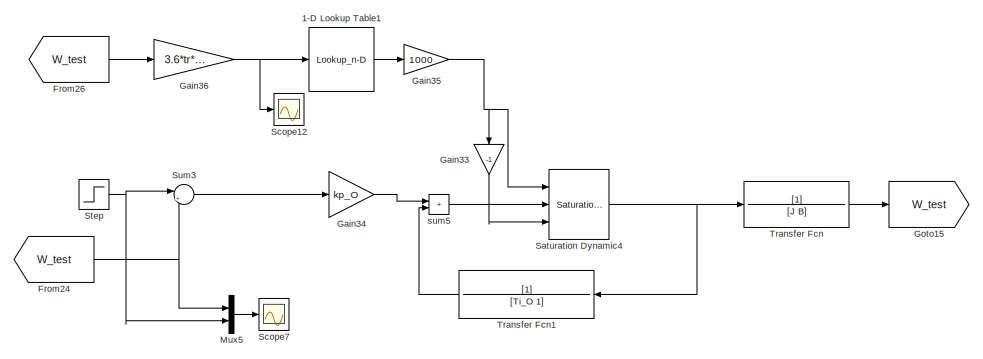
[diagram: root canvas - part 1/10, top center region]
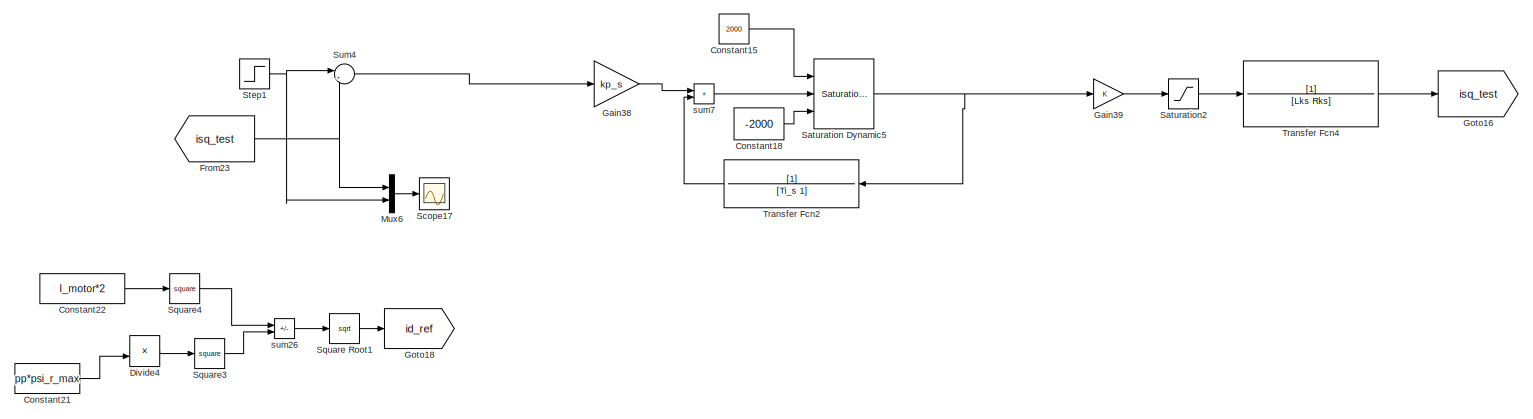
[diagram: root canvas - part 2/10, top center region]
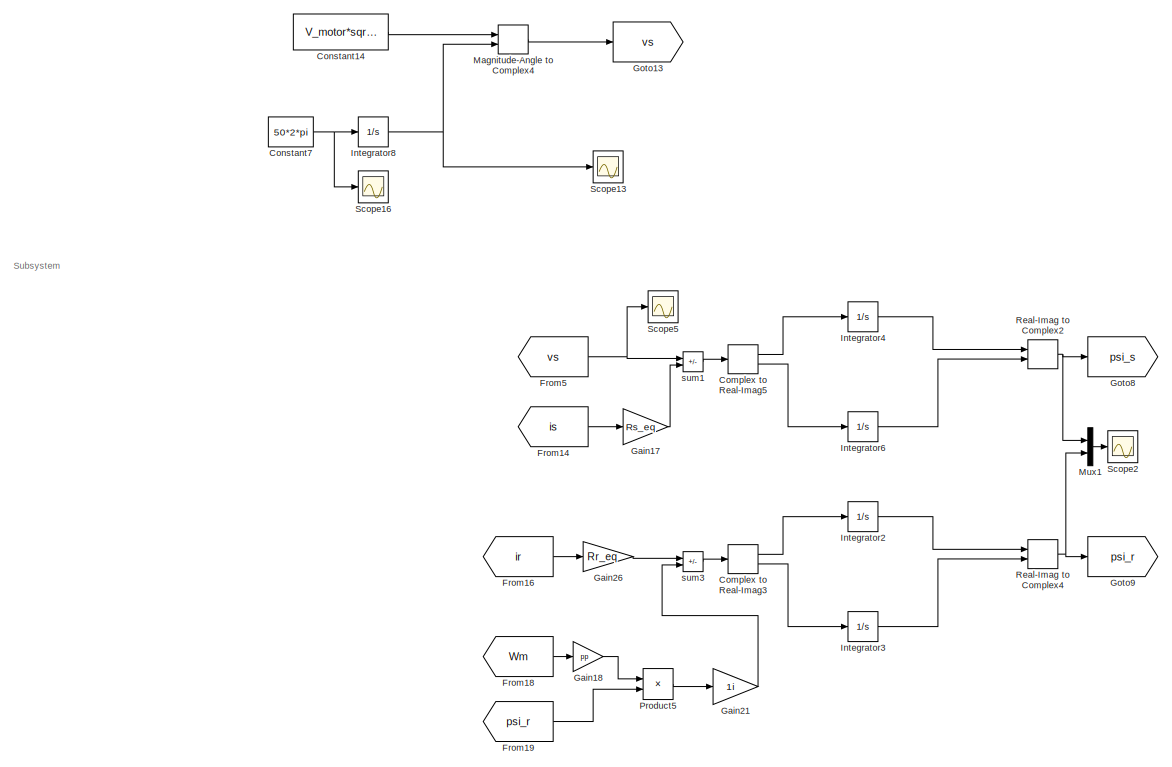
[diagram: root canvas - part 3/10, middle right region]
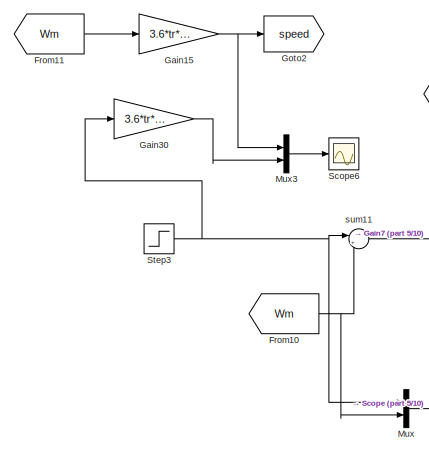
[diagram: root canvas - part 4/10, top left region]
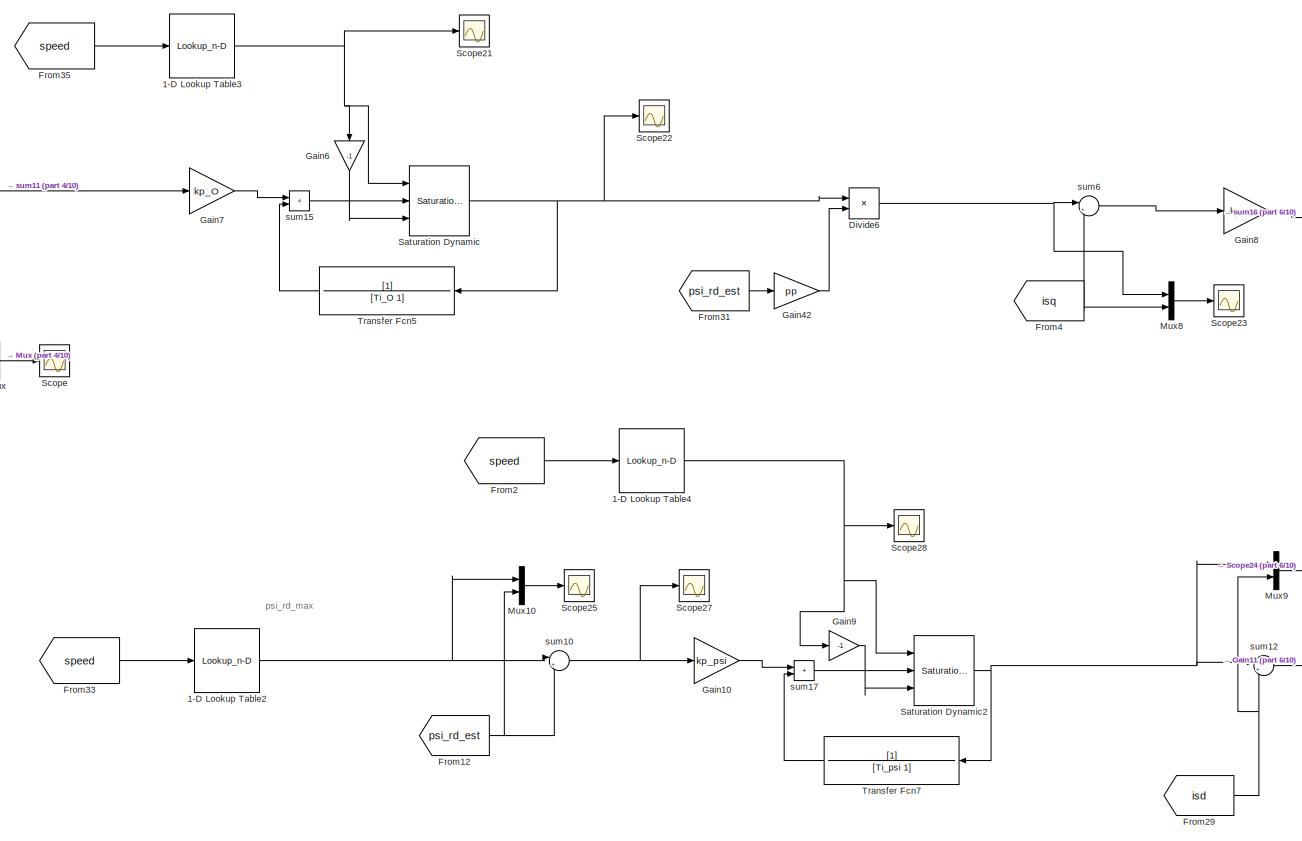
[diagram: root canvas - part 5/10, central region]
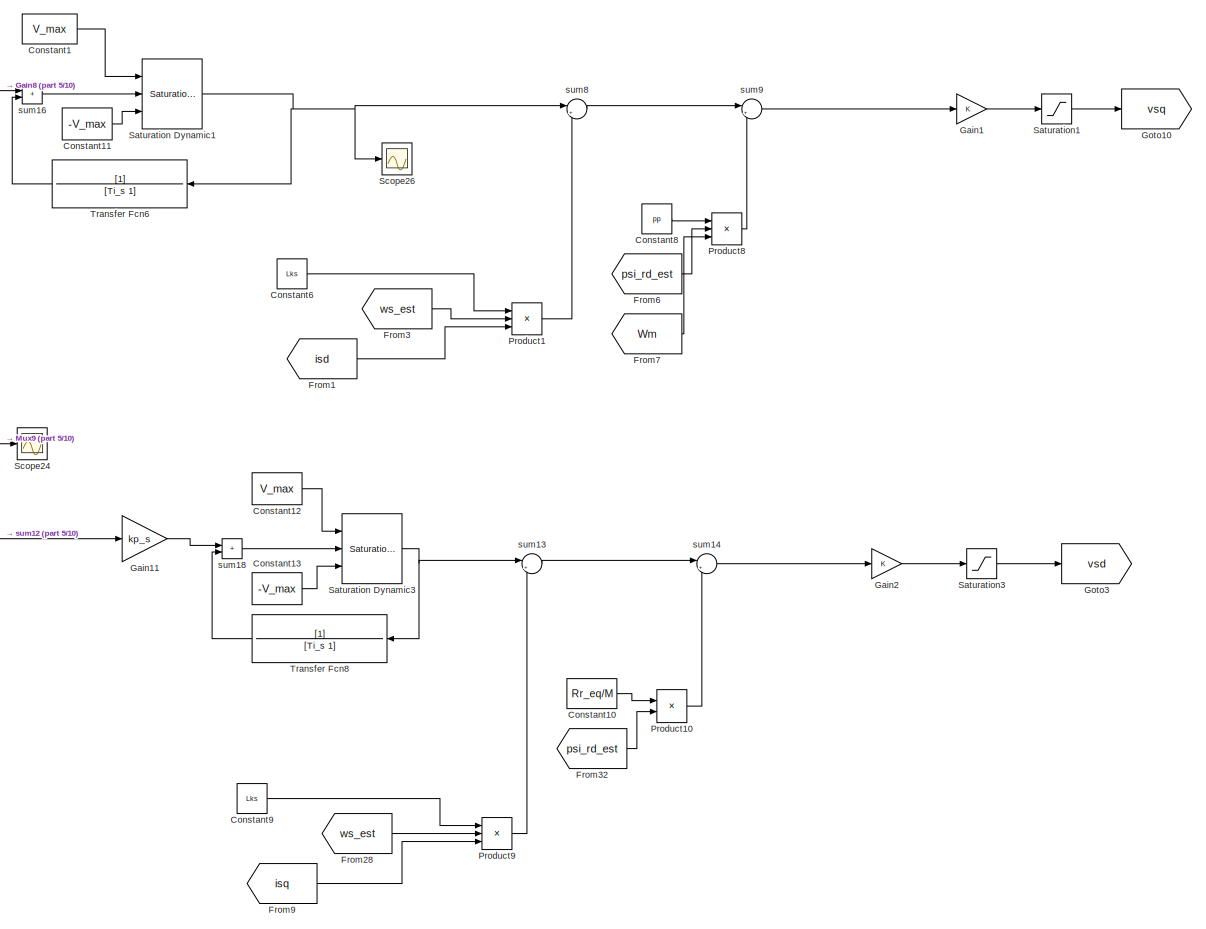
[diagram: root canvas - part 6/10, central region]
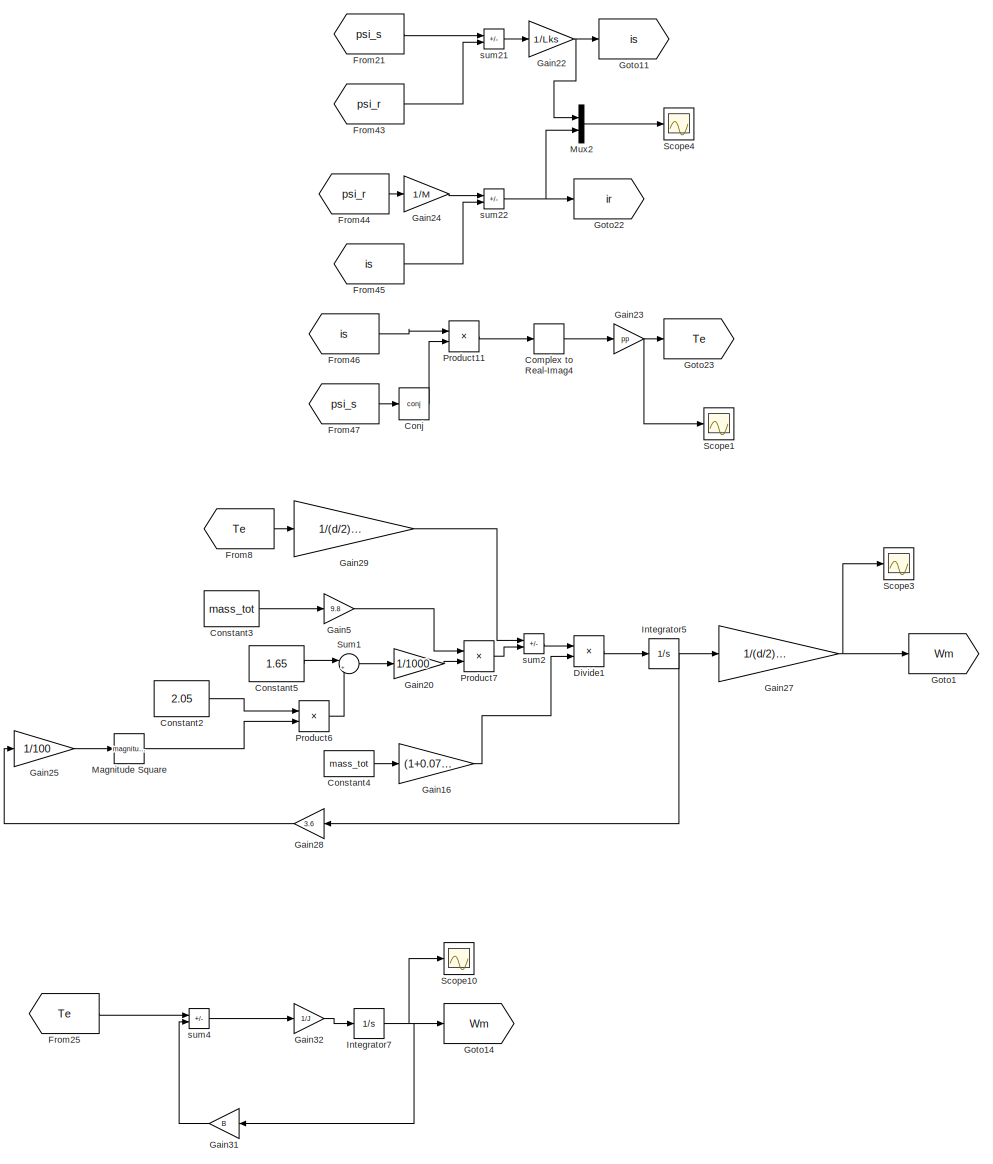
[diagram: root canvas - part 7/10, bottom right region]
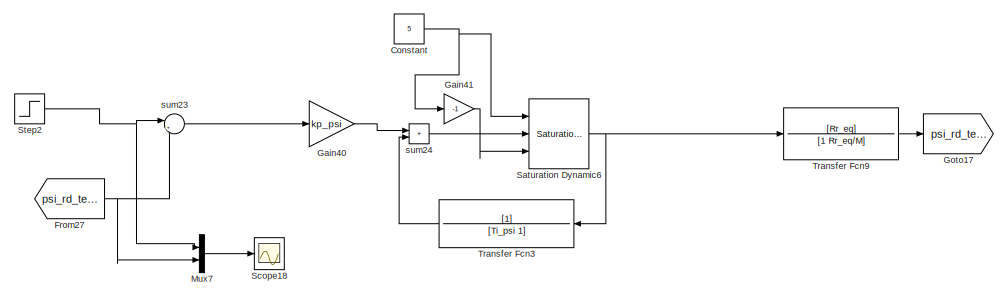
[diagram: root canvas - part 8/10, middle left region]
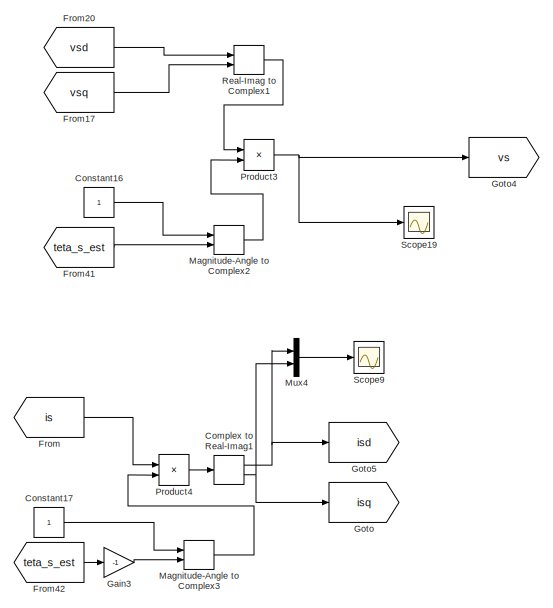
[diagram: root canvas - part 9/10, bottom center region]
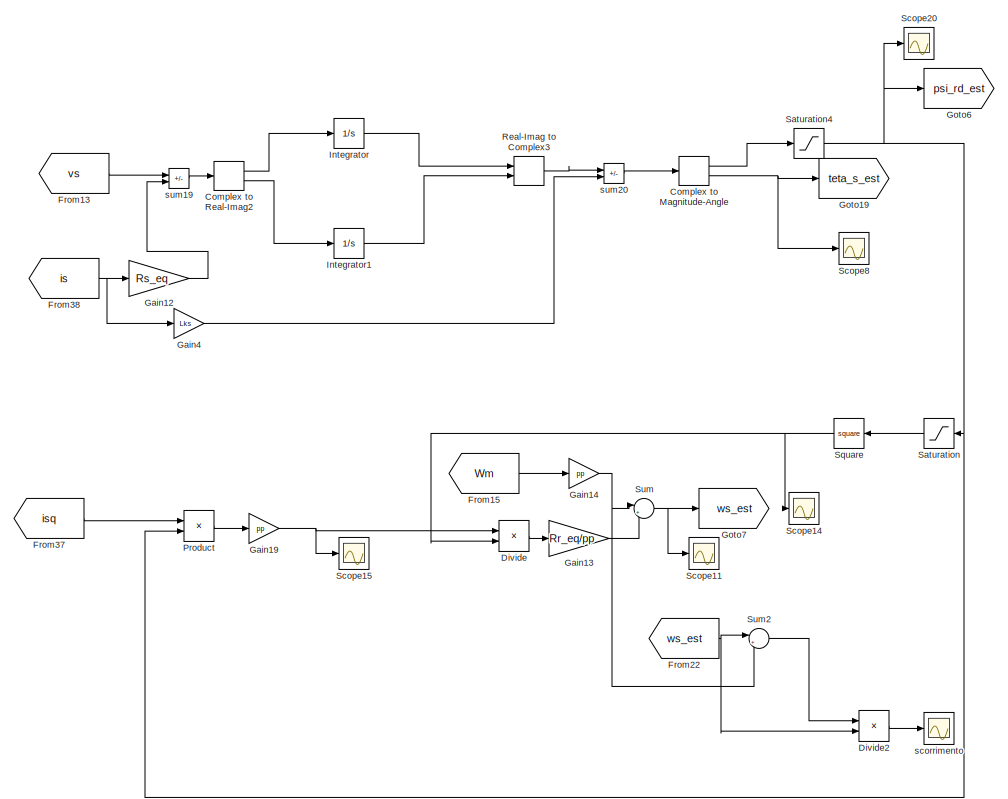
[diagram: root canvas - part 10/10, bottom center region]
MODEL slx_50318d2f122a
KIND model
CONFIG AbsTol = auto
CONFIG EnableMultiTasking = off
CONFIG FixedStep = auto
CONFIG MaxStep = auto
CONFIG MinStep = auto
CONFIG RelTol = 1e-3
CONFIG SampleTimeConstraint = Unconstrained
CONFIG SolverName = ode23s
CONFIG StartTime = 0.0
CONFIG StopTime = 400
BLOCK [Lookup_n-D] 1-D Lookup Table1
  BreakpointsForDimension1 = traction(:,1)
  Commented = on
  InputPortMap = u0
  InternalRulePriority = Speed
  NumberOfTableDimensions = 1
  Ports = [1, 1]
  RndMeth = Simplest
  Table = traction(:,2)
BLOCK [Lookup_n-D] 1-D Lookup Table2
  BreakpointsForDimension1 = speed_ref
  InputPortMap = u0
  InternalRulePriority = Speed
  NumberOfTableDimensions = 1
  Ports = [1, 1]
  RndMeth = Simplest
  Table = psi_rd_ref
BLOCK [Lookup_n-D] 1-D Lookup Table3
  BreakpointsForDimension1 = traction(:,1)
  InputPortMap = u0
  InternalRulePriority = Speed
  NumberOfTableDimensions = 1
  Ports = [1, 1]
  RndMeth = Simplest
  Table = traction(:,2).*d/2.*tr
BLOCK [Lookup_n-D] 1-D Lookup Table4
  BreakpointsForDimension1 = speed_ref
  InputPortMap = u0
  InternalRulePriority = Speed
  NumberOfTableDimensions = 1
  Ports = [1, 1]
  RndMeth = Simplest
  Table = id_ref
BLOCK [ComplexToMagnitudeAngle] Complex to Magnitude-Angle
  Ports = [1, 2]
BLOCK [ComplexToRealImag] Complex to Real-Imag1
  Ports = [1, 2]
BLOCK [ComplexToRealImag] Complex to Real-Imag2
  Ports = [1, 2]
BLOCK [ComplexToRealImag] Complex to Real-Imag3
  Ports = [1, 2]
BLOCK [ComplexToRealImag] Complex to Real-Imag4
  Output = Imag
  Ports = [1, 1]
BLOCK [ComplexToRealImag] Complex to Real-Imag5
  Ports = [1, 2]
BLOCK [Math] Conj
  Operator = conj
  Ports = [1, 1]
BLOCK [Constant] Constant
  Commented = on
  Value = 5
BLOCK [Constant] Constant1
  Value = V_max
BLOCK [Constant] Constant10
  Value = Rr_eq/M
BLOCK [Constant] Constant11
  Value = -V_max
BLOCK [Constant] Constant12
  Value = V_max
BLOCK [Constant] Constant13
  Value = -V_max
BLOCK [Constant] Constant14
  Commented = on
  Value = V_motor*sqrt(3/2)
BLOCK [Constant] Constant15
  Commented = on
  Value = 2000
BLOCK [Constant] Constant16
BLOCK [Constant] Constant17
BLOCK [Constant] Constant18
  Commented = on
  Value = -2000
BLOCK [Constant] Constant2
  Value = 2.05
BLOCK [Constant] Constant21
  Commented = on
  Value = pp*psi_r_max
BLOCK [Constant] Constant22
  Commented = on
  Value = I_motor*2
BLOCK [Constant] Constant3
  Value = mass_tot
BLOCK [Constant] Constant4
  Value = mass_tot
BLOCK [Constant] Constant5
  Value = 1.65
BLOCK [Constant] Constant6
  Value = Lks
BLOCK [Constant] Constant7
  Commented = on
  Value = 50*2*pi
BLOCK [Constant] Constant8
  Value = pp
BLOCK [Constant] Constant9
  Value = Lks
BLOCK [Product] Divide
  Inputs = */
  Ports = [2, 1]
BLOCK [Product] Divide1
  Inputs = */
  Ports = [2, 1]
BLOCK [Product] Divide2
  Inputs = */
  Ports = [2, 1]
BLOCK [Product] Divide4
  Commented = on
  Inputs = */
  Ports = [2, 1]
BLOCK [Product] Divide6
  Inputs = */
  Ports = [2, 1]
BLOCK [From] From
  GotoTag = is
BLOCK [From] From1
  GotoTag = isd
BLOCK [From] From10
  GotoTag = Wm
BLOCK [From] From11
  GotoTag = Wm
BLOCK [From] From12
  GotoTag = psi_rd_est
BLOCK [From] From13
  GotoTag = vs
BLOCK [From] From14
  GotoTag = is
BLOCK [From] From15
  GotoTag = Wm
BLOCK [From] From16
  GotoTag = ir
BLOCK [From] From17
  GotoTag = vsq
BLOCK [From] From18
  GotoTag = Wm
BLOCK [From] From19
  GotoTag = psi_r
BLOCK [From] From2
  GotoTag = speed
BLOCK [From] From20
  GotoTag = vsd
BLOCK [From] From21
  GotoTag = psi_s
BLOCK [From] From22
  GotoTag = ws_est
BLOCK [From] From23
  Commented = on
  GotoTag = isq_test
BLOCK [From] From24
  Commented = on
  GotoTag = W_test
BLOCK [From] From25
  Commented = on
  GotoTag = Te
BLOCK [From] From26
  Commented = on
  GotoTag = W_test
BLOCK [From] From27
  Commented = on
  GotoTag = psi_rd_test
BLOCK [From] From28
  GotoTag = ws_est
BLOCK [From] From29
  GotoTag = isd
BLOCK [From] From3
  GotoTag = ws_est
BLOCK [From] From31
  GotoTag = psi_rd_est
BLOCK [From] From32
  GotoTag = psi_rd_est
BLOCK [From] From33
  GotoTag = speed
BLOCK [From] From35
  GotoTag = speed
BLOCK [From] From37
  GotoTag = isq
BLOCK [From] From38
  GotoTag = is
BLOCK [From] From4
  GotoTag = isq
BLOCK [From] From41
  GotoTag = teta_s_est
BLOCK [From] From42
  GotoTag = teta_s_est
BLOCK [From] From43
  GotoTag = psi_r
BLOCK [From] From44
  GotoTag = psi_r
BLOCK [From] From45
  GotoTag = is
BLOCK [From] From46
  GotoTag = is
BLOCK [From] From47
  GotoTag = psi_s
BLOCK [From] From5
  GotoTag = vs
BLOCK [From] From6
  GotoTag = psi_rd_est
BLOCK [From] From7
  GotoTag = Wm
BLOCK [From] From8
  GotoTag = Te
BLOCK [From] From9
  GotoTag = isq
BLOCK [Gain] Gain1
BLOCK [Gain] Gain10
  Gain = kp_psi
BLOCK [Gain] Gain11
  Gain = kp_s
BLOCK [Gain] Gain12
  Gain = Rs_eq
BLOCK [Gain] Gain13
  Gain = Rr_eq/pp
BLOCK [Gain] Gain14
  Gain = pp
BLOCK [Gain] Gain15
  Gain = 3.6*tr*d/2
BLOCK [Gain] Gain16
  Gain = (1+0.075)
BLOCK [Gain] Gain17
  Gain = Rs_eq
BLOCK [Gain] Gain18
  Gain = pp
BLOCK [Gain] Gain19
  Gain = pp
BLOCK [Gain] Gain2
BLOCK [Gain] Gain20
  Gain = 1/1000
BLOCK [Gain] Gain21
  Gain = 1i
BLOCK [Gain] Gain22
  Gain = 1/Lks
BLOCK [Gain] Gain23
  Gain = pp
BLOCK [Gain] Gain24
  Gain = 1/M
BLOCK [Gain] Gain25
  Gain = 1/100
BLOCK [Gain] Gain26
  Gain = Rr_eq
BLOCK [Gain] Gain27
  Gain = 1/(d/2)/tr
BLOCK [Gain] Gain28
  Gain = 3.6
  NameLocation = top
BLOCK [Gain] Gain29
  Gain = 1/(d/2)/tr
BLOCK [Gain] Gain3
  Gain = -1
BLOCK [Gain] Gain30
  Gain = 3.6*tr*d/2
BLOCK [Gain] Gain31
  Commented = on
  Gain = B
  NameLocation = top
BLOCK [Gain] Gain32
  Commented = on
  Gain = 1/J
BLOCK [Gain] Gain33
  Commented = on
  Gain = -1
  NameLocation = left
BLOCK [Gain] Gain34
  Commented = on
  Gain = kp_O
BLOCK [Gain] Gain35
  Commented = on
  Gain = 1000
BLOCK [Gain] Gain36
  Commented = on
  Gain = 3.6*tr*d/2
BLOCK [Gain] Gain38
  Commented = on
  Gain = kp_s
BLOCK [Gain] Gain39
  Commented = on
BLOCK [Gain] Gain4
  Gain = Lks
BLOCK [Gain] Gain40
  Commented = on
  Gain = kp_psi
BLOCK [Gain] Gain41
  Commented = on
  Gain = -1
BLOCK [Gain] Gain42
  Gain = pp
BLOCK [Gain] Gain5
  Gain = 9.8
BLOCK [Gain] Gain6
  Gain = -1
  NameLocation = left
BLOCK [Gain] Gain7
  Gain = kp_O
BLOCK [Gain] Gain8
  Gain = kp_s
BLOCK [Gain] Gain9
  Gain = -1
BLOCK [Goto] Goto
  GotoTag = isq
BLOCK [Goto] Goto1
  GotoTag = Wm
BLOCK [Goto] Goto10
  GotoTag = vsq
BLOCK [Goto] Goto11
  GotoTag = is
BLOCK [Goto] Goto13
  Commented = on
  GotoTag = vs
BLOCK [Goto] Goto14
  Commented = on
  GotoTag = Wm
BLOCK [Goto] Goto15
  Commented = on
  GotoTag = W_test
BLOCK [Goto] Goto16
  Commented = on
  GotoTag = isq_test
BLOCK [Goto] Goto17
  Commented = on
  GotoTag = psi_rd_test
BLOCK [Goto] Goto18
  Commented = on
  GotoTag = id_ref
BLOCK [Goto] Goto19
  GotoTag = teta_s_est
BLOCK [Goto] Goto2
  GotoTag = speed
BLOCK [Goto] Goto22
  GotoTag = ir
BLOCK [Goto] Goto23
  GotoTag = Te
BLOCK [Goto] Goto3
  GotoTag = vsd
BLOCK [Goto] Goto4
  GotoTag = vs
BLOCK [Goto] Goto5
  GotoTag = isd
BLOCK [Goto] Goto6
  GotoTag = psi_rd_est
BLOCK [Goto] Goto7
  GotoTag = ws_est
BLOCK [Goto] Goto8
  GotoTag = psi_s
BLOCK [Goto] Goto9
  GotoTag = psi_r
BLOCK [Integrator] Integrator
  Ports = [1, 1]
BLOCK [Integrator] Integrator1
  Ports = [1, 1]
BLOCK [Integrator] Integrator2
  Ports = [1, 1]
BLOCK [Integrator] Integrator3
  Ports = [1, 1]
BLOCK [Integrator] Integrator4
  Ports = [1, 1]
BLOCK [Integrator] Integrator5
  Ports = [1, 1]
BLOCK [Integrator] Integrator6
  Ports = [1, 1]
BLOCK [Integrator] Integrator7
  Commented = on
  Ports = [1, 1]
BLOCK [Integrator] Integrator8
  Commented = on
  Ports = [1, 1]
BLOCK [Math] Magnitude Square
  Operator = magnitude^2
  Ports = [1, 1]
  RndMeth = Zero
  SignedPower = on
BLOCK [MagnitudeAngleToComplex] Magnitude-Angle to Complex2
  Ports = [2, 1]
BLOCK [MagnitudeAngleToComplex] Magnitude-Angle to Complex3
  Ports = [2, 1]
BLOCK [MagnitudeAngleToComplex] Magnitude-Angle to Complex4
  Commented = on
  Ports = [2, 1]
BLOCK [Mux] Mux
  DisplayOption = bar
  Inputs = 2
  Ports = [2, 1]
BLOCK [Mux] Mux1
  DisplayOption = bar
  Inputs = 2
  Ports = [2, 1]
BLOCK [Mux] Mux10
  DisplayOption = bar
  Inputs = 2
  Ports = [2, 1]
BLOCK [Mux] Mux2
  DisplayOption = bar
  Inputs = 2
  Ports = [2, 1]
BLOCK [Mux] Mux3
  DisplayOption = bar
  Inputs = 2
  Ports = [2, 1]
BLOCK [Mux] Mux4
  DisplayOption = bar
  Inputs = 2
  Ports = [2, 1]
BLOCK [Mux] Mux5
  Commented = on
  DisplayOption = bar
  Inputs = 2
  Ports = [2, 1]
BLOCK [Mux] Mux6
  Commented = on
  DisplayOption = bar
  Inputs = 2
  Ports = [2, 1]
BLOCK [Mux] Mux7
  Commented = on
  DisplayOption = bar
  Inputs = 2
  Ports = [2, 1]
BLOCK [Mux] Mux8
  DisplayOption = bar
  Inputs = 2
  Ports = [2, 1]
BLOCK [Mux] Mux9
  DisplayOption = bar
  Inputs = 2
  Ports = [2, 1]
BLOCK [Product] Product
  Ports = [2, 1]
BLOCK [Product] Product1
  Inputs = 3
  Ports = [3, 1]
BLOCK [Product] Product10
  Ports = [2, 1]
BLOCK [Product] Product11
  Ports = [2, 1]
BLOCK [Product] Product3
  Ports = [2, 1]
BLOCK [Product] Product4
  Ports = [2, 1]
BLOCK [Product] Product5
  Ports = [2, 1]
BLOCK [Product] Product6
  Ports = [2, 1]
BLOCK [Product] Product7
  Ports = [2, 1]
BLOCK [Product] Product8
  Inputs = 3
  Ports = [3, 1]
BLOCK [Product] Product9
  Inputs = 3
  Ports = [3, 1]
BLOCK [RealImagToComplex] Real-Imag to Complex1
  Ports = [2, 1]
BLOCK [RealImagToComplex] Real-Imag to Complex2
  Ports = [2, 1]
BLOCK [RealImagToComplex] Real-Imag to Complex3
  Ports = [2, 1]
BLOCK [RealImagToComplex] Real-Imag to Complex4
  Ports = [2, 1]
BLOCK [Saturate] Saturation
  LowerLimit = -4.2
  NameLocation = top
  UpperLimit = 4.2
BLOCK [Reference] Saturation Dynamic  REF=simulink/Discontinuities/Saturation
Dynamic
  Ports = [3, 1]
  SourceBlock = simulink/Discontinuities/Saturation\nDynamic
  SourceProductBaseCode = SL
  SourceType = Saturation Dynamic
BLOCK [Reference] Saturation Dynamic1  REF=simulink/Discontinuities/Saturation
Dynamic
  Ports = [3, 1]
  SourceBlock = simulink/Discontinuities/Saturation\nDynamic
  SourceProductBaseCode = SL
  SourceType = Saturation Dynamic
BLOCK [Reference] Saturation Dynamic2  REF=simulink/Discontinuities/Saturation
Dynamic
  Ports = [3, 1]
  SourceBlock = simulink/Discontinuities/Saturation\nDynamic
  SourceProductBaseCode = SL
  SourceType = Saturation Dynamic
BLOCK [Reference] Saturation Dynamic3  REF=simulink/Discontinuities/Saturation
Dynamic
  Ports = [3, 1]
  SourceBlock = simulink/Discontinuities/Saturation\nDynamic
  SourceProductBaseCode = SL
  SourceType = Saturation Dynamic
BLOCK [Reference] Saturation Dynamic4  REF=simulink/Discontinuities/Saturation
Dynamic
  Commented = on
  Ports = [3, 1]
  SourceBlock = simulink/Discontinuities/Saturation\nDynamic
  SourceProductBaseCode = SL
  SourceType = Saturation Dynamic
BLOCK [Reference] Saturation Dynamic5  REF=simulink/Discontinuities/Saturation
Dynamic
  Commented = on
  Ports = [3, 1]
  SourceBlock = simulink/Discontinuities/Saturation\nDynamic
  SourceProductBaseCode = SL
  SourceType = Saturation Dynamic
BLOCK [Reference] Saturation Dynamic6  REF=simulink/Discontinuities/Saturation
Dynamic
  Commented = on
  Ports = [3, 1]
  SourceBlock = simulink/Discontinuities/Saturation\nDynamic
  SourceProductBaseCode = SL
  SourceType = Saturation Dynamic
BLOCK [Saturate] Saturation1
  LinearizeAsGain = off
  LowerLimit = -V_max
  UpperLimit = V_max
BLOCK [Saturate] Saturation2
  Commented = on
  LowerLimit = -20000
  UpperLimit = 20000
BLOCK [Saturate] Saturation3
  LinearizeAsGain = off
  LowerLimit = -V_max
  UpperLimit = V_max
BLOCK [Saturate] Saturation4
  LowerLimit = 0.01
  UpperLimit = 8
BLOCK [Scope] Scope
  Floating = off
  NumInputPorts = 1
  Ports = [1]
  ScopeSpecificationString = Simulink.scopes.TimeScopeBlockCfg('CurrentConfiguration', extmgr.ConfigurationSet(extmgr.Configuration('Core','General UI',true),extmgr.Configuration('Core','Source UI',true),extmgr.Configuration('Sources','WiredSimulink',true),extmgr.Configuration('Visuals','Time Domain',true,'SerializedDisplays',{struct('MinYLimReal','-89.16378','MaxYLimReal','398.79598','YLabelReal','','MinYLimMag','0.00000','M...<+1431ch>
BLOCK [Scope] Scope1
  Floating = off
  NumInputPorts = 1
  Ports = [1]
  ScopeSpecificationString = Simulink.scopes.TimeScopeBlockCfg('CurrentConfiguration', extmgr.ConfigurationSet(extmgr.Configuration('Core','General UI',true),extmgr.Configuration('Core','Source UI',true),extmgr.Configuration('Sources','WiredSimulink',true,'DataLoggingVariableName','ScopeData1'),extmgr.Configuration('Visuals','Time Domain',true,'SerializedDisplays',{struct('MinYLimReal','-32755.21729','MaxYLimReal','294796.955...<+1498ch>
BLOCK [Scope] Scope10
  Floating = off
  NumInputPorts = 1
  Ports = [1]
  ScopeSpecificationString = Simulink.scopes.TimeScopeBlockCfg('CurrentConfiguration', extmgr.ConfigurationSet(extmgr.Configuration('Core','General UI',true),extmgr.Configuration('Core','Source UI',true),extmgr.Configuration('Sources','WiredSimulink',true,'DataLoggingVariableName','ScopeData10'),extmgr.Configuration('Visuals','Time Domain',true,'SerializedDisplays',{struct('MinYLimReal','-1.00000','MaxYLimReal','1.00000','YLa...<+1486ch>
BLOCK [Scope] Scope11
  Floating = off
  NumInputPorts = 1
  Ports = [1]
  ScopeSpecificationString = Simulink.scopes.TimeScopeBlockCfg('CurrentConfiguration', extmgr.ConfigurationSet(extmgr.Configuration('Core','General UI',true),extmgr.Configuration('Core','Source UI',true),extmgr.Configuration('Sources','WiredSimulink',true,'DataLoggingVariableName','ScopeData11'),extmgr.Configuration('Visuals','Time Domain',true,'SerializedDisplays',{struct('MinYLimReal','-131.68689','MaxYLimReal','1185.18199'...<+1480ch>
BLOCK [Scope] Scope12
  Commented = on
  Floating = off
  NumInputPorts = 1
  Ports = [1]
  ScopeSpecificationString = Simulink.scopes.TimeScopeBlockCfg('CurrentConfiguration', extmgr.ConfigurationSet(extmgr.Configuration('Core','General UI',true),extmgr.Configuration('Core','Source UI',true),extmgr.Configuration('Sources','WiredSimulink',true,'DataLoggingVariableName','ScopeData13'),extmgr.Configuration('Visuals','Time Domain',true,'SerializedDisplays',{struct('MinYLimReal','-25.14489','MaxYLimReal','226.30401','...<+1475ch>
BLOCK [Scope] Scope13
  Commented = on
  Floating = off
  NumInputPorts = 1
  Ports = [1]
  ScopeSpecificationString = Simulink.scopes.TimeScopeBlockCfg('CurrentConfiguration', extmgr.ConfigurationSet(extmgr.Configuration('Core','General UI',true),extmgr.Configuration('Core','Source UI',true),extmgr.Configuration('Sources','WiredSimulink',true,'DataLoggingVariableName','ScopeData16'),extmgr.Configuration('Visuals','Time Domain',true,'SerializedDisplays',{struct('MinYLimReal','-157079.63268','MaxYLimReal','1413716....<+1589ch>
BLOCK [Scope] Scope14
  Floating = off
  NumInputPorts = 1
  Ports = [1]
  ScopeSpecificationString = Simulink.scopes.TimeScopeBlockCfg('CurrentConfiguration', extmgr.ConfigurationSet(extmgr.Configuration('Core','General UI',true),extmgr.Configuration('Core','Source UI',true),extmgr.Configuration('Sources','WiredSimulink',true,'DataLoggingVariableName','ScopeData14'),extmgr.Configuration('Visuals','Time Domain',true,'SerializedDisplays',{struct('MinYLimReal','-12.46124','MaxYLimReal','112.49569','...<+1475ch>
BLOCK [Scope] Scope15
  Floating = off
  NumInputPorts = 1
  Ports = [1]
  ScopeSpecificationString = Simulink.scopes.TimeScopeBlockCfg('CurrentConfiguration', extmgr.ConfigurationSet(extmgr.Configuration('Core','General UI',true),extmgr.Configuration('Core','Source UI',true),extmgr.Configuration('Sources','WiredSimulink',true,'DataLoggingVariableName','ScopeData15'),extmgr.Configuration('Visuals','Time Domain',true,'SerializedDisplays',{struct('MinYLimReal','-1332.689','MaxYLimReal','1333.06962',...<+1483ch>
BLOCK [Scope] Scope16
  Commented = on
  Floating = off
  NumInputPorts = 1
  Ports = [1]
  ScopeSpecificationString = Simulink.scopes.TimeScopeBlockCfg('CurrentConfiguration', extmgr.ConfigurationSet(extmgr.Configuration('Core','General UI',true),extmgr.Configuration('Core','Source UI',true),extmgr.Configuration('Sources','WiredSimulink',true,'DataLoggingVariableName','ScopeData17'),extmgr.Configuration('Visuals','Time Domain',true,'SerializedDisplays',{struct('MinYLimReal','214.15927','MaxYLimReal','414.15927','...<+1574ch>
BLOCK [Scope] Scope17
  Commented = on
  Floating = off
  NumInputPorts = 1
  Ports = [1]
  ScopeSpecificationString = Simulink.scopes.TimeScopeBlockCfg('CurrentConfiguration', extmgr.ConfigurationSet(extmgr.Configuration('Core','General UI',true),extmgr.Configuration('Core','Source UI',true),extmgr.Configuration('Sources','WiredSimulink',true,'DataLoggingVariableName','ScopeData18'),extmgr.Configuration('Visuals','Time Domain',true,'SerializedDisplays',{struct('MinYLimReal','-199.95286','MaxYLimReal','5170.20957'...<+1541ch>
BLOCK [Scope] Scope18
  Commented = on
  Floating = off
  NumInputPorts = 1
  Ports = [1]
  ScopeSpecificationString = Simulink.scopes.TimeScopeBlockCfg('CurrentConfiguration', extmgr.ConfigurationSet(extmgr.Configuration('Core','General UI',true),extmgr.Configuration('Core','Source UI',true),extmgr.Configuration('Sources','WiredSimulink',true,'DataLoggingVariableName','ScopeData19'),extmgr.Configuration('Visuals','Time Domain',true,'SerializedDisplays',{struct('MinYLimReal','-0.50002','MaxYLimReal','4.50021','YLa...<+1461ch>
BLOCK [Scope] Scope19
  Floating = off
  NumInputPorts = 1
  Ports = [1]
  ScopeSpecificationString = Simulink.scopes.TimeScopeBlockCfg('CurrentConfiguration', extmgr.ConfigurationSet(extmgr.Configuration('Core','General UI',true),extmgr.Configuration('Core','Source UI',true),extmgr.Configuration('Sources','WiredSimulink',true,'DataLoggingVariableName','ScopeData20'),extmgr.Configuration('Visuals','Time Domain',true,'SerializedDisplays',{struct('MinYLimReal','-2168.726','MaxYLimReal','1430.5417','...<+1491ch>
BLOCK [Scope] Scope2
  Floating = off
  NumInputPorts = 1
  Ports = [1]
  ScopeSpecificationString = Simulink.scopes.TimeScopeBlockCfg('CurrentConfiguration', extmgr.ConfigurationSet(extmgr.Configuration('Core','General UI',true),extmgr.Configuration('Core','Source UI',true),extmgr.Configuration('Sources','WiredSimulink',true,'DataLoggingVariableName','ScopeData2'),extmgr.Configuration('Visuals','Time Domain',true,'SerializedDisplays',{struct('MinYLimReal','-43.88722','MaxYLimReal','55.50771','YL...<+1672ch>
BLOCK [Scope] Scope20
  Floating = off
  NumInputPorts = 1
  Ports = [1]
  ScopeSpecificationString = Simulink.scopes.TimeScopeBlockCfg('CurrentConfiguration', extmgr.ConfigurationSet(extmgr.Configuration('Core','General UI',true),extmgr.Configuration('Core','Source UI',true),extmgr.Configuration('Sources','WiredSimulink',true,'DataLoggingVariableName','ScopeData21'),extmgr.Configuration('Visuals','Time Domain',true,'SerializedDisplays',{struct('MinYLimReal','-0.51396','MaxYLimReal','4.72566','YLa...<+1415ch>
BLOCK [Scope] Scope21
  Floating = off
  NumInputPorts = 1
  Ports = [1]
  ScopeSpecificationString = Simulink.scopes.TimeScopeBlockCfg('CurrentConfiguration', extmgr.ConfigurationSet(extmgr.Configuration('Core','General UI',true),extmgr.Configuration('Core','Source UI',true),extmgr.Configuration('Sources','WiredSimulink',true,'DataLoggingVariableName','ScopeData22'),extmgr.Configuration('Visuals','Time Domain',true,'SerializedDisplays',{struct('MinYLimReal','40388.67162','MaxYLimReal','44658.2102...<+1538ch>
BLOCK [Scope] Scope22
  Floating = off
  NumInputPorts = 1
  Ports = [1]
  ScopeSpecificationString = Simulink.scopes.TimeScopeBlockCfg('CurrentConfiguration', extmgr.ConfigurationSet(extmgr.Configuration('Core','General UI',true),extmgr.Configuration('Core','Source UI',true),extmgr.Configuration('Sources','WiredSimulink',true,'DataLoggingVariableName','ScopeData4'),extmgr.Configuration('Visuals','Time Domain',true,'SerializedDisplays',{struct('MinYLimReal','-5528.85252','MaxYLimReal','49759.67264...<+1545ch>
BLOCK [Scope] Scope23
  Floating = off
  NumInputPorts = 1
  Ports = [1]
  ScopeSpecificationString = Simulink.scopes.TimeScopeBlockCfg('CurrentConfiguration', extmgr.ConfigurationSet(extmgr.Configuration('Core','General UI',true),extmgr.Configuration('Core','Source UI',true),extmgr.Configuration('Sources','WiredSimulink',true,'DataLoggingVariableName','ScopeData1'),extmgr.Configuration('Visuals','Time Domain',true,'SerializedDisplays',{struct('MinYLimReal','-458.09734','MaxYLimReal','4122.87608',...<+1538ch>
BLOCK [Scope] Scope24
  Floating = off
  NumInputPorts = 1
  Ports = [1]
  ScopeSpecificationString = Simulink.scopes.TimeScopeBlockCfg('CurrentConfiguration', extmgr.ConfigurationSet(extmgr.Configuration('Core','General UI',true),extmgr.Configuration('Core','Source UI',true),extmgr.Configuration('Sources','WiredSimulink',true,'DataLoggingVariableName','ScopeData2'),extmgr.Configuration('Visuals','Time Domain',true,'SerializedDisplays',{struct('MinYLimReal','-100.71484','MaxYLimReal','906.43359','...<+1563ch>
BLOCK [Scope] Scope25
  Floating = off
  NumInputPorts = 1
  Ports = [1]
  ScopeSpecificationString = Simulink.scopes.TimeScopeBlockCfg('CurrentConfiguration', extmgr.ConfigurationSet(extmgr.Configuration('Core','General UI',true),extmgr.Configuration('Core','Source UI',true),extmgr.Configuration('Sources','WiredSimulink',true,'DataLoggingVariableName','ScopeData3'),extmgr.Configuration('Visuals','Time Domain',true,'SerializedDisplays',{struct('MinYLimReal','-0.9048','MaxYLimReal','8.24317','YLabe...<+1517ch>
BLOCK [Scope] Scope26
  Floating = off
  NumInputPorts = 1
  Ports = [1]
  ScopeSpecificationString = Simulink.scopes.TimeScopeBlockCfg('CurrentConfiguration', extmgr.ConfigurationSet(extmgr.Configuration('Core','General UI',true),extmgr.Configuration('Core','Source UI',true),extmgr.Configuration('Sources','WiredSimulink',true,'DataLoggingVariableName','ScopeData5'),extmgr.Configuration('Visuals','Time Domain',true,'SerializedDisplays',{struct('MinYLimReal','-250.00000','MaxYLimReal','2250.00000',...<+1525ch>
BLOCK [Scope] Scope27
  Floating = off
  NumInputPorts = 1
  Ports = [1]
  ScopeSpecificationString = Simulink.scopes.TimeScopeBlockCfg('CurrentConfiguration', extmgr.ConfigurationSet(extmgr.Configuration('Core','General UI',true),extmgr.Configuration('Core','Source UI',true),extmgr.Configuration('Sources','WiredSimulink',true,'DataLoggingVariableName','ScopeData6'),extmgr.Configuration('Visuals','Time Domain',true,'SerializedDisplays',{struct('MinYLimReal','-0.78128','MaxYLimReal','7.13151','YLab...<+1506ch>
BLOCK [Scope] Scope28
  Floating = off
  NumInputPorts = 1
  Ports = [1]
  ScopeSpecificationString = Simulink.scopes.TimeScopeBlockCfg('CurrentConfiguration', extmgr.ConfigurationSet(extmgr.Configuration('Core','General UI',true),extmgr.Configuration('Core','Source UI',true),extmgr.Configuration('Sources','WiredSimulink',true,'DataLoggingVariableName','ScopeData7'),extmgr.Configuration('Visuals','Time Domain',true,'SerializedDisplays',{struct('MinYLimReal','3378.16398','MaxYLimReal','3574.18962',...<+1553ch>
BLOCK [Scope] Scope3
  Floating = off
  NumInputPorts = 1
  Ports = [1]
  ScopeSpecificationString = Simulink.scopes.TimeScopeBlockCfg('CurrentConfiguration', extmgr.ConfigurationSet(extmgr.Configuration('Core','General UI',true),extmgr.Configuration('Core','Source UI',true),extmgr.Configuration('Sources','WiredSimulink',true,'DataLoggingVariableName','ScopeData3'),extmgr.Configuration('Visuals','Time Domain',true,'SerializedDisplays',{struct('MinYLimReal','-43.83135','MaxYLimReal','394.39727','Y...<+1375ch>
BLOCK [Scope] Scope4
  Floating = off
  NumInputPorts = 1
  Ports = [1]
  ScopeSpecificationString = Simulink.scopes.TimeScopeBlockCfg('CurrentConfiguration', extmgr.ConfigurationSet(extmgr.Configuration('Core','General UI',true),extmgr.Configuration('Core','Source UI',true),extmgr.Configuration('Sources','WiredSimulink',true,'DataLoggingVariableName','ScopeData4'),extmgr.Configuration('Visuals','Time Domain',true,'SerializedDisplays',{struct('MinYLimReal','-173.57742','MaxYLimReal','165.30563','...<+1606ch>
BLOCK [Scope] Scope5
  Floating = off
  NumInputPorts = 1
  Ports = [1]
  ScopeSpecificationString = Simulink.scopes.TimeScopeBlockCfg('CurrentConfiguration', extmgr.ConfigurationSet(extmgr.Configuration('Core','General UI',true),extmgr.Configuration('Core','Source UI',true),extmgr.Configuration('Sources','WiredSimulink',true,'DataLoggingVariableName','ScopeData5'),extmgr.Configuration('Visuals','Time Domain',true,'SerializedDisplays',{struct('MinYLimReal','-2409.24263','MaxYLimReal','2424.56285'...<+1588ch>
BLOCK [Scope] Scope6
  Floating = off
  NumInputPorts = 1
  Ports = [1]
  ScopeSpecificationString = Simulink.scopes.TimeScopeBlockCfg('CurrentConfiguration', extmgr.ConfigurationSet(extmgr.Configuration('Core','General UI',true),extmgr.Configuration('Core','Source UI',true),extmgr.Configuration('Sources','WiredSimulink',true,'DataLoggingVariableName','ScopeData6'),extmgr.Configuration('Visuals','Time Domain',true,'SerializedDisplays',{struct('MinYLimReal','-28.14651','MaxYLimReal','224.28124','Y...<+1528ch>
BLOCK [Scope] Scope7
  Commented = on
  Floating = off
  NumInputPorts = 1
  Ports = [1]
  ScopeSpecificationString = Simulink.scopes.TimeScopeBlockCfg('CurrentConfiguration', extmgr.ConfigurationSet(extmgr.Configuration('Core','General UI',true),extmgr.Configuration('Core','Source UI',true),extmgr.Configuration('Sources','WiredSimulink',true,'DataLoggingVariableName','ScopeData7'),extmgr.Configuration('Visuals','Time Domain',true,'SerializedDisplays',{struct('MinYLimReal','-44.21614','MaxYLimReal','397.94522','Y...<+1487ch>
BLOCK [Scope] Scope8
  Floating = off
  NumInputPorts = 1
  Ports = [1]
  ScopeSpecificationString = Simulink.scopes.TimeScopeBlockCfg('CurrentConfiguration', extmgr.ConfigurationSet(extmgr.Configuration('Core','General UI',true),extmgr.Configuration('Core','Source UI',true),extmgr.Configuration('Sources','WiredSimulink',true,'DataLoggingVariableName','ScopeData8'),extmgr.Configuration('Visuals','Time Domain',true,'SerializedDisplays',{struct('MinYLimReal','-0.04283','MaxYLimReal','1.79747','YLab...<+1431ch>
BLOCK [Scope] Scope9
  Floating = off
  NumInputPorts = 1
  Ports = [1]
  ScopeSpecificationString = Simulink.scopes.TimeScopeBlockCfg('CurrentConfiguration', extmgr.ConfigurationSet(extmgr.Configuration('Core','General UI',true),extmgr.Configuration('Core','Source UI',true),extmgr.Configuration('Sources','WiredSimulink',true,'DataLoggingVariableName','ScopeData9'),extmgr.Configuration('Visuals','Time Domain',true,'SerializedDisplays',{struct('MinYLimReal','-108919.50659','MaxYLimReal','109766.52...<+1575ch>
BLOCK [Math] Square
  NameLocation = top
  Operator = square
  Ports = [1, 1]
BLOCK [Sqrt] Square Root1
  Commented = on
BLOCK [Math] Square3
  Commented = on
  Operator = square
  Ports = [1, 1]
BLOCK [Math] Square4
  Commented = on
  Operator = square
  Ports = [1, 1]
BLOCK [Step] Step
  After = 350
  Commented = on
  SampleTime = 0
BLOCK [Step] Step1
  After = 5000
  Commented = on
  SampleTime = 0
BLOCK [Step] Step2
  After = 4
  Commented = on
  SampleTime = 0
BLOCK [Step] Step3
  After = 350
  SampleTime = 0
  Time = 2
BLOCK [Sum] Sum
  Inputs = |++
  Ports = [2, 1]
BLOCK [Sum] Sum1
  Inputs = |++
  Ports = [2, 1]
BLOCK [Sum] Sum2
  Inputs = |+-
  Ports = [2, 1]
BLOCK [Sum] Sum3
  Commented = on
  Inputs = |+-
  Ports = [2, 1]
BLOCK [Sum] Sum4
  Commented = on
  Inputs = |+-
  Ports = [2, 1]
BLOCK [TransferFcn] Transfer Fcn
  Commented = on
  Denominator = [J B]
BLOCK [TransferFcn] Transfer Fcn1
  Commented = on
  Denominator = [Ti_O 1]
BLOCK [TransferFcn] Transfer Fcn2
  Commented = on
  Denominator = [Ti_s 1]
BLOCK [TransferFcn] Transfer Fcn3
  Commented = on
  Denominator = [Ti_psi 1]
BLOCK [TransferFcn] Transfer Fcn4
  Commented = on
  Denominator = [Lks Rks]
BLOCK [TransferFcn] Transfer Fcn5
  Denominator = [Ti_O 1]
BLOCK [TransferFcn] Transfer Fcn6
  Denominator = [Ti_s 1]
BLOCK [TransferFcn] Transfer Fcn7
  Denominator = [Ti_psi 1]
BLOCK [TransferFcn] Transfer Fcn8
  Denominator = [Ti_s 1]
BLOCK [TransferFcn] Transfer Fcn9
  Commented = on
  Denominator = [1 Rr_eq/M]
  Numerator = [Rr_eq]
BLOCK [Scope] scorrimento
  Floating = off
  NumInputPorts = 1
  Ports = [1]
  ScopeSpecificationString = Simulink.scopes.TimeScopeBlockCfg('CurrentConfiguration', extmgr.ConfigurationSet(extmgr.Configuration('Core','General UI',true),extmgr.Configuration('Core','Source UI',true),extmgr.Configuration('Sources','WiredSimulink',true,'DataLoggingVariableName','ScopeData12'),extmgr.Configuration('Visuals','Time Domain',true,'SerializedDisplays',{struct('MinYLimReal','-0.07827','MaxYLimReal','1.11982','YLa...<+1411ch>
BLOCK [Sum] sum1
  IconShape = rectangular
  Inputs = +-
  Ports = [2, 1]
BLOCK [Sum] sum10
  Inputs = |+-
  Ports = [2, 1]
BLOCK [Sum] sum11
  Inputs = |+-
  Ports = [2, 1]
BLOCK [Sum] sum12
  Inputs = |+-
  Ports = [2, 1]
BLOCK [Sum] sum13
  Inputs = |+-
  Ports = [2, 1]
BLOCK [Sum] sum14
  Inputs = |+-
  Ports = [2, 1]
BLOCK [Sum] sum15
  IconShape = rectangular
  Ports = [2, 1]
BLOCK [Sum] sum16
  IconShape = rectangular
  Ports = [2, 1]
BLOCK [Sum] sum17
  IconShape = rectangular
  Ports = [2, 1]
BLOCK [Sum] sum18
  IconShape = rectangular
  Ports = [2, 1]
BLOCK [Sum] sum19
  IconShape = rectangular
  Inputs = +-
  Ports = [2, 1]
BLOCK [Sum] sum2
  IconShape = rectangular
  Inputs = +-
  Ports = [2, 1]
BLOCK [Sum] sum20
  IconShape = rectangular
  Inputs = +-
  Ports = [2, 1]
BLOCK [Sum] sum21
  IconShape = rectangular
  Inputs = +-
  Ports = [2, 1]
BLOCK [Sum] sum22
  IconShape = rectangular
  Inputs = +-
  Ports = [2, 1]
BLOCK [Sum] sum23
  Commented = on
  Inputs = |+-
  Ports = [2, 1]
BLOCK [Sum] sum24
  Commented = on
  IconShape = rectangular
  Ports = [2, 1]
BLOCK [Sum] sum26
  Commented = on
  IconShape = rectangular
  Inputs = +-
  Ports = [2, 1]
BLOCK [Sum] sum3
  IconShape = rectangular
  Inputs = -+
  Ports = [2, 1]
BLOCK [Sum] sum4
  Commented = on
  IconShape = rectangular
  Inputs = +-
  Ports = [2, 1]
BLOCK [Sum] sum5
  Commented = on
  IconShape = rectangular
  Ports = [2, 1]
BLOCK [Sum] sum6
  Inputs = |+-
  Ports = [2, 1]
BLOCK [Sum] sum7
  Commented = on
  IconShape = rectangular
  Ports = [2, 1]
BLOCK [Sum] sum8
  Inputs = |++
  Ports = [2, 1]
BLOCK [Sum] sum9
  Inputs = |++
  Ports = [2, 1]
ANNOTATION (root): Subsystem
ANNOTATION (root): psi_rd_max
LINE 1-D Lookup Table1:1 -> Gain35:1
NET 1-D Lookup Table2:1 -> Mux10:1, sum10:1
NET 1-D Lookup Table3:1 -> Gain6:1, Saturation Dynamic:1, Scope21:1
NET 1-D Lookup Table4:1 -> Gain9:1, Saturation Dynamic2:1, Scope28:1
LINE Complex to Magnitude-Angle:1 -> Saturation4:1
NET Complex to Magnitude-Angle:2 -> Goto19:1, Scope8:1
NET Complex to Real-Imag1:1 -> Goto5:1, Mux4:1
NET Complex to Real-Imag1:2 -> Goto:1, Mux4:2
LINE Complex to Real-Imag2:1 -> Integrator:1
LINE Complex to Real-Imag2:2 -> Integrator1:1
LINE Complex to Real-Imag3:1 -> Integrator2:1
LINE Complex to Real-Imag3:2 -> Integrator3:1
LINE Complex to Real-Imag4:1 -> Gain23:1
LINE Complex to Real-Imag5:1 -> Integrator4:1
LINE Complex to Real-Imag5:2 -> Integrator6:1
LINE Conj:1 -> Product11:2
LINE Constant10:1 -> Product10:1
LINE Constant11:1 -> Saturation Dynamic1:3
LINE Constant12:1 -> Saturation Dynamic3:1
LINE Constant13:1 -> Saturation Dynamic3:3
LINE Constant14:1 -> Magnitude-Angle to Complex4:1
LINE Constant15:1 -> Saturation Dynamic5:1
LINE Constant16:1 -> Magnitude-Angle to Complex2:1
LINE Constant17:1 -> Magnitude-Angle to Complex3:1
LINE Constant18:1 -> Saturation Dynamic5:3
LINE Constant1:1 -> Saturation Dynamic1:1
LINE Constant21:1 -> Divide4:2
LINE Constant22:1 -> Square4:1
LINE Constant2:1 -> Product6:1
LINE Constant3:1 -> Gain5:1
LINE Constant4:1 -> Gain16:1
LINE Constant5:1 -> Sum1:1
LINE Constant6:1 -> Product1:1
NET Constant7:1 -> Integrator8:1, Scope16:1
LINE Constant8:1 -> Product8:1
LINE Constant9:1 -> Product9:1
NET Constant:1 -> Gain41:1, Saturation Dynamic6:1
LINE Divide1:1 -> Integrator5:1
LINE Divide2:1 -> scorrimento:1
LINE Divide4:1 -> Square3:1
NET Divide6:1 -> Mux8:1, sum6:1
LINE Divide:1 -> Gain13:1
NET From10:1 -> Mux:2, sum11:2
LINE From11:1 -> Gain15:1
NET From12:1 -> Mux10:2, sum10:2
LINE From13:1 -> sum19:1
LINE From14:1 -> Gain17:1
LINE From15:1 -> Gain14:1
LINE From16:1 -> Gain26:1
LINE From17:1 -> Real-Imag to Complex1:2
LINE From18:1 -> Gain18:1
LINE From19:1 -> Product5:2
LINE From1:1 -> Product1:3
LINE From20:1 -> Real-Imag to Complex1:1
LINE From21:1 -> sum21:1
NET From22:1 -> Divide2:2, Sum2:1
NET From23:1 -> Mux6:1, Sum4:2
NET From24:1 -> Mux5:1, Sum3:2
LINE From25:1 -> sum4:1
LINE From26:1 -> Gain36:1
NET From27:1 -> Mux7:2, sum23:2
LINE From28:1 -> Product9:2
NET From29:1 -> Mux9:2, sum12:2
LINE From2:1 -> 1-D Lookup Table4:1
LINE From31:1 -> Gain42:1
LINE From32:1 -> Product10:2
LINE From33:1 -> 1-D Lookup Table2:1
LINE From35:1 -> 1-D Lookup Table3:1
LINE From37:1 -> Product:1
NET From38:1 -> Gain12:1, Gain4:1
LINE From3:1 -> Product1:2
LINE From41:1 -> Magnitude-Angle to Complex2:2
LINE From42:1 -> Gain3:1
LINE From43:1 -> sum21:2
LINE From44:1 -> Gain24:1
LINE From45:1 -> sum22:2
LINE From46:1 -> Product11:1
LINE From47:1 -> Conj:1
NET From4:1 -> Mux8:2, sum6:2
NET From5:1 -> Scope5:1, sum1:1
LINE From6:1 -> Product8:2
LINE From7:1 -> Product8:3
LINE From8:1 -> Gain29:1
LINE From9:1 -> Product9:3
LINE From:1 -> Product4:1
LINE Gain10:1 -> sum17:1
LINE Gain11:1 -> sum18:1
LINE Gain12:1 -> sum19:2
LINE Gain13:1 -> Sum:2
NET Gain14:1 -> Sum2:2, Sum:1
NET Gain15:1 -> Goto2:1, Mux3:1
LINE Gain16:1 -> Divide1:2
LINE Gain17:1 -> sum1:2
LINE Gain18:1 -> Product5:1
NET Gain19:1 -> Divide:1, Scope15:1
LINE Gain1:1 -> Saturation1:1
LINE Gain20:1 -> Product7:2
LINE Gain21:1 -> sum3:2
NET Gain22:1 -> Goto11:1, Mux2:1
NET Gain23:1 -> Goto23:1, Scope1:1
LINE Gain24:1 -> sum22:1
LINE Gain25:1 -> Magnitude Square:1
LINE Gain26:1 -> sum3:1
NET Gain27:1 -> Goto1:1, Scope3:1
LINE Gain28:1 -> Gain25:1
LINE Gain29:1 -> sum2:1
LINE Gain2:1 -> Saturation3:1
LINE Gain30:1 -> Mux3:2
LINE Gain31:1 -> sum4:2
LINE Gain32:1 -> Integrator7:1
LINE Gain33:1 -> Saturation Dynamic4:3
LINE Gain34:1 -> sum5:1
NET Gain35:1 -> Gain33:1, Saturation Dynamic4:1
NET Gain36:1 -> 1-D Lookup Table1:1, Scope12:1
LINE Gain38:1 -> sum7:1
LINE Gain39:1 -> Saturation2:1
LINE Gain3:1 -> Magnitude-Angle to Complex3:2
LINE Gain40:1 -> sum24:1
LINE Gain41:1 -> Saturation Dynamic6:3
LINE Gain42:1 -> Divide6:2
LINE Gain4:1 -> sum20:2
LINE Gain5:1 -> Product7:1
LINE Gain6:1 -> Saturation Dynamic:3
LINE Gain7:1 -> sum15:1
LINE Gain8:1 -> sum16:1
LINE Gain9:1 -> Saturation Dynamic2:3
LINE Integrator1:1 -> Real-Imag to Complex3:2
LINE Integrator2:1 -> Real-Imag to Complex4:1
LINE Integrator3:1 -> Real-Imag to Complex4:2
LINE Integrator4:1 -> Real-Imag to Complex2:1
NET Integrator5:1 -> Gain27:1, Gain28:1
LINE Integrator6:1 -> Real-Imag to Complex2:2
NET Integrator7:1 -> Gain31:1, Goto14:1, Scope10:1
NET Integrator8:1 -> Magnitude-Angle to Complex4:2, Scope13:1
LINE Integrator:1 -> Real-Imag to Complex3:1
LINE Magnitude Square:1 -> Product6:2
LINE Magnitude-Angle to Complex2:1 -> Product3:2
LINE Magnitude-Angle to Complex3:1 -> Product4:2
LINE Magnitude-Angle to Complex4:1 -> Goto13:1
LINE Mux10:1 -> Scope25:1
LINE Mux1:1 -> Scope2:1
LINE Mux2:1 -> Scope4:1
LINE Mux3:1 -> Scope6:1
LINE Mux4:1 -> Scope9:1
LINE Mux5:1 -> Scope7:1
LINE Mux6:1 -> Scope17:1
LINE Mux7:1 -> Scope18:1
LINE Mux8:1 -> Scope23:1
LINE Mux9:1 -> Scope24:1
LINE Mux:1 -> Scope:1
LINE Product10:1 -> sum14:2
LINE Product11:1 -> Complex to Real-Imag4:1
LINE Product1:1 -> sum8:2
NET Product3:1 -> Goto4:1, Scope19:1
LINE Product4:1 -> Complex to Real-Imag1:1
LINE Product5:1 -> Gain21:1
LINE Product6:1 -> Sum1:2
LINE Product7:1 -> sum2:2
LINE Product8:1 -> sum9:2
LINE Product9:1 -> sum13:2
LINE Product:1 -> Gain19:1
LINE Real-Imag to Complex1:1 -> Product3:1
NET Real-Imag to Complex2:1 -> Goto8:1, Mux1:1
LINE Real-Imag to Complex3:1 -> sum20:1
NET Real-Imag to Complex4:1 -> Goto9:1, Mux1:2
NET Saturation Dynamic1:1 -> Scope26:1, Transfer Fcn6:1, sum8:1
NET Saturation Dynamic2:1 -> Mux9:1, Transfer Fcn7:1, sum12:1
NET Saturation Dynamic3:1 -> Transfer Fcn8:1, sum13:1
NET Saturation Dynamic4:1 -> Transfer Fcn1:1, Transfer Fcn:1
NET Saturation Dynamic5:1 -> Gain39:1, Transfer Fcn2:1
NET Saturation Dynamic6:1 -> Transfer Fcn3:1, Transfer Fcn9:1
NET Saturation Dynamic:1 -> Divide6:1, Scope22:1, Transfer Fcn5:1
LINE Saturation1:1 -> Goto10:1
LINE Saturation2:1 -> Transfer Fcn4:1
LINE Saturation3:1 -> Goto3:1
NET Saturation4:1 -> Goto6:1, Product:2, Saturation:1, Scope20:1
LINE Saturation:1 -> Square:1
LINE Square Root1:1 -> Goto18:1
LINE Square3:1 -> sum26:2
LINE Square4:1 -> sum26:1
NET Square:1 -> Divide:2, Scope14:1
NET Step1:1 -> Mux6:2, Sum4:1
NET Step2:1 -> Mux7:1, sum23:1
NET Step3:1 -> Gain30:1, Mux:1, sum11:1
NET Step:1 -> Mux5:2, Sum3:1
LINE Sum1:1 -> Gain20:1
LINE Sum2:1 -> Divide2:1
LINE Sum3:1 -> Gain34:1
LINE Sum4:1 -> Gain38:1
NET Sum:1 -> Goto7:1, Scope11:1
LINE Transfer Fcn1:1 -> sum5:2
LINE Transfer Fcn2:1 -> sum7:2
LINE Transfer Fcn3:1 -> sum24:2
LINE Transfer Fcn4:1 -> Goto16:1
LINE Transfer Fcn5:1 -> sum15:2
LINE Transfer Fcn6:1 -> sum16:2
LINE Transfer Fcn7:1 -> sum17:2
LINE Transfer Fcn8:1 -> sum18:2
LINE Transfer Fcn9:1 -> Goto17:1
LINE Transfer Fcn:1 -> Goto15:1
NET sum10:1 -> Gain10:1, Scope27:1
LINE sum11:1 -> Gain7:1
LINE sum12:1 -> Gain11:1
LINE sum13:1 -> sum14:1
LINE sum14:1 -> Gain2:1
LINE sum15:1 -> Saturation Dynamic:2
LINE sum16:1 -> Saturation Dynamic1:2
LINE sum17:1 -> Saturation Dynamic2:2
LINE sum18:1 -> Saturation Dynamic3:2
LINE sum19:1 -> Complex to Real-Imag2:1
LINE sum1:1 -> Complex to Real-Imag5:1
LINE sum20:1 -> Complex to Magnitude-Angle:1
LINE sum21:1 -> Gain22:1
NET sum22:1 -> Goto22:1, Mux2:2
LINE sum23:1 -> Gain40:1
LINE sum24:1 -> Saturation Dynamic6:2
LINE sum26:1 -> Square Root1:1
LINE sum2:1 -> Divide1:1
LINE sum3:1 -> Complex to Real-Imag3:1
LINE sum4:1 -> Gain32:1
LINE sum5:1 -> Saturation Dynamic4:2
LINE sum6:1 -> Gain8:1
LINE sum7:1 -> Saturation Dynamic5:2
LINE sum8:1 -> sum9:1
LINE sum9:1 -> Gain1:1
note: NET lines group one-source signal fan-out (src -> all destinations, sorted); 1:1 wires keep LINE
